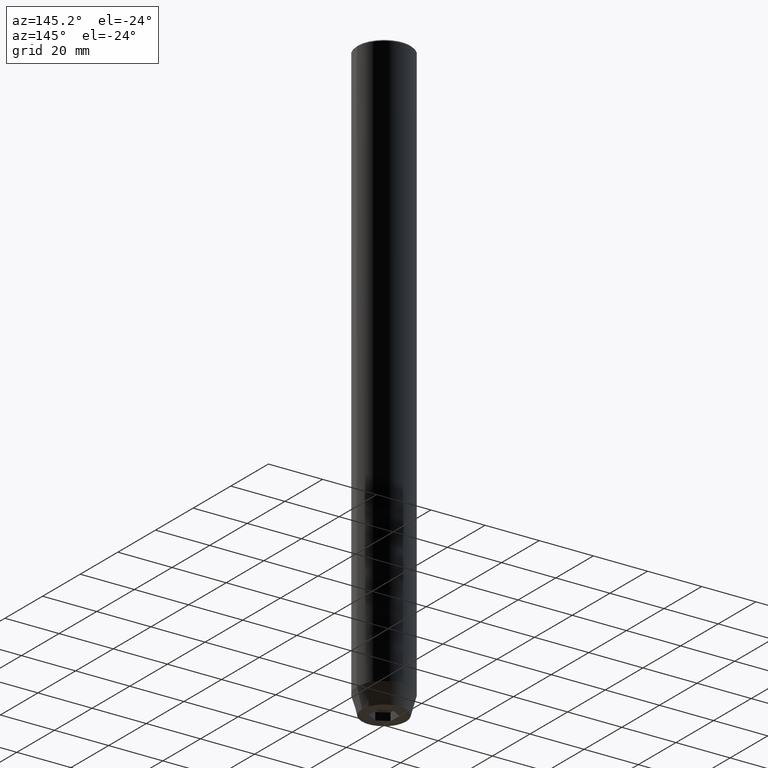
[diagram: clean part render]
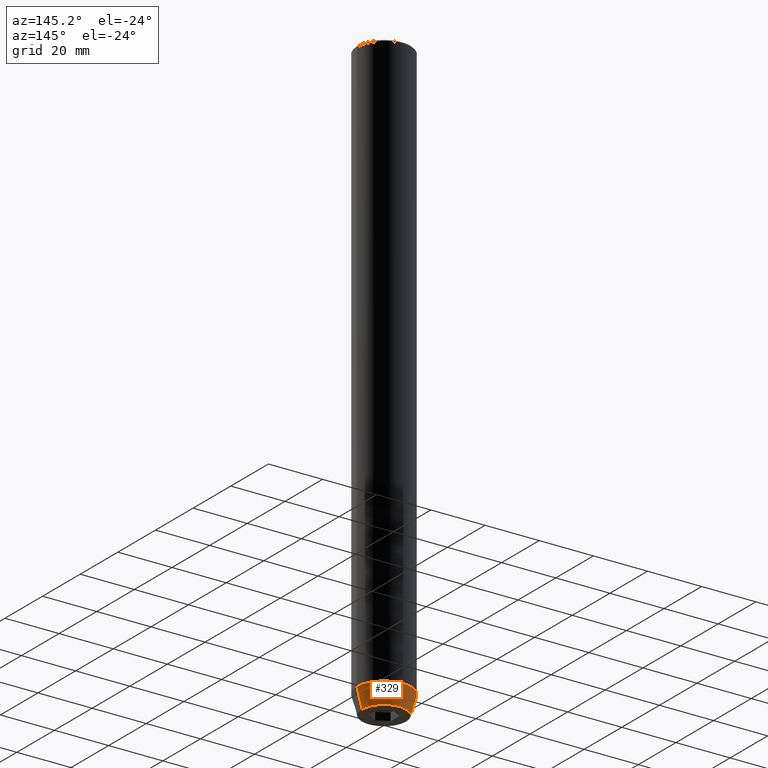
[diagram: same view with one face highlighted and labeled with its STEP entity id]
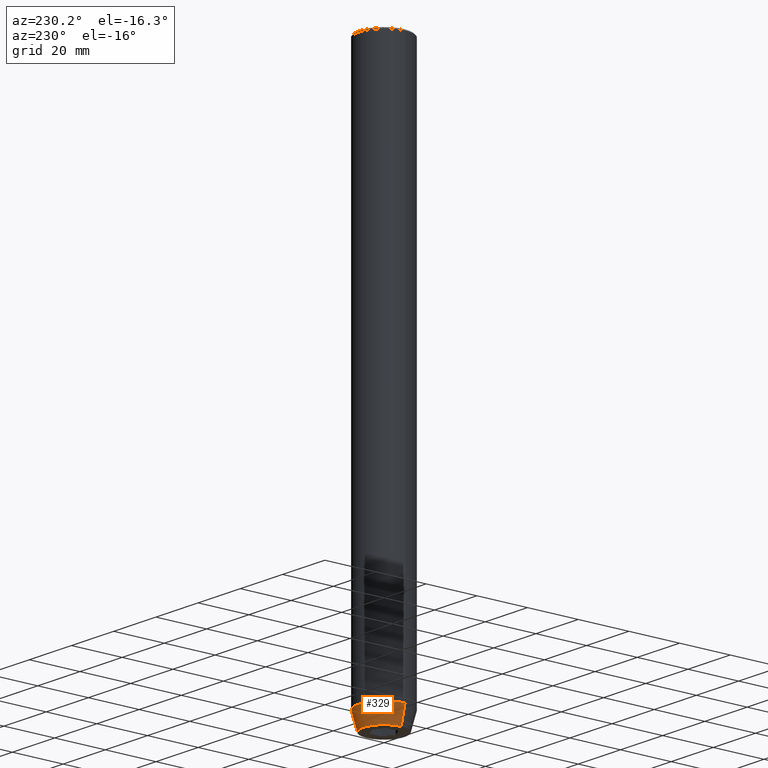
[diagram: same view with one face highlighted and labeled with its STEP entity id]
A machine part, auxiliary view. The second image highlights one B-rep face of the part: STEP entity #329.
A second angle (auxiliary view) of the same face is appended — the face is thin or edge-on in the first view.
In plain terms, the highlighted conical surface has half-angle 15 deg.
Its self-contained STEP definition (entity closure, byte-faithful):
#4 = VERTEX_POINT ( 'NONE', #357 ) ;
#11 = CONICAL_SURFACE ( 'NONE', #306, 10.00000000000000000, 0.2617993877991497409 ) ;
#20 = DIRECTION ( 'NONE',  ( 1.000000000000000000, 0.000000000000000000, 0.000000000000000000 ) ) ;
#21 = VERTEX_POINT ( 'NONE', #259 ) ;
#39 = AXIS2_PLACEMENT_3D ( 'NONE', #64, #228, #20 ) ;
#64 = CARTESIAN_POINT ( 'NONE',  ( 0.000000000000000000, 0.000000000000000000, -220.0000000000000000 ) ) ;
#105 = ORIENTED_EDGE ( 'NONE', *, *, #449, .T. ) ;
#144 = DIRECTION ( 'NONE',  ( 1.000000000000000000, 0.000000000000000000, 0.000000000000000000 ) ) ;
#206 = DIRECTION ( 'NONE',  ( 0.2588190451025210170, 0.000000000000000000, 0.9659258262890680902 ) ) ;
#213 = EDGE_CURVE ( 'NONE', #4, #375, #553, .T. ) ;
#216 = EDGE_CURVE ( 'NONE', #21, #319, #358, .T. ) ;
#228 = DIRECTION ( 'NONE',  ( -0.000000000000000000, -0.000000000000000000, 1.000000000000000000 ) ) ;
#259 = CARTESIAN_POINT ( 'NONE',  ( 8.124355652982130138, 0.000000000000000000, -220.0000000000000000 ) ) ;
#274 = AXIS2_PLACEMENT_3D ( 'NONE', #436, #554, #144 ) ;
#277 = EDGE_LOOP ( 'NONE', ( #421, #105, #585, #510 ) ) ;
#295 = EDGE_CURVE ( 'NONE', #21, #4, #438, .T. ) ;
#306 = AXIS2_PLACEMENT_3D ( 'NONE', #446, #499, #444 ) ;
#319 = VERTEX_POINT ( 'NONE', #491 ) ;
#329 = ADVANCED_FACE ( 'NONE', ( #494 ), #11, .T. ) ;
#344 = CARTESIAN_POINT ( 'NONE',  ( -10.00000000000000000, 1.224646799147353256E-15, -212.9999999999999716 ) ) ;
#357 = CARTESIAN_POINT ( 'NONE',  ( 10.00000000000000000, 0.000000000000000000, -212.9999999999999716 ) ) ;
#358 = CIRCLE ( 'NONE', #39, 8.124355652982130138 ) ;
#369 = VECTOR ( 'NONE', #206, 1000.000000000000114 ) ;
#375 = VERTEX_POINT ( 'NONE', #577 ) ;
#390 = CARTESIAN_POINT ( 'NONE',  ( 10.00000000000000000, 0.000000000000000000, -212.9999999999999716 ) ) ;
#421 = ORIENTED_EDGE ( 'NONE', *, *, #216, .T. ) ;
#436 = CARTESIAN_POINT ( 'NONE',  ( 0.000000000000000000, 0.000000000000000000, -212.9999999999999716 ) ) ;
#438 = LINE ( 'NONE', #390, #369 ) ;
#444 = DIRECTION ( 'NONE',  ( 1.000000000000000000, 0.000000000000000000, 0.000000000000000000 ) ) ;
#446 = CARTESIAN_POINT ( 'NONE',  ( 0.000000000000000000, 0.000000000000000000, -212.9999999999999716 ) ) ;
#449 = EDGE_CURVE ( 'NONE', #319, #375, #570, .T. ) ;
#485 = DIRECTION ( 'NONE',  ( -0.2588190451025210170, 3.169619151431768639E-17, 0.9659258262890680902 ) ) ;
#491 = CARTESIAN_POINT ( 'NONE',  ( -8.124355652982130138, 1.109796706851640162E-15, -220.0000000000000000 ) ) ;
#494 = FACE_OUTER_BOUND ( 'NONE', #277, .T. ) ;
#499 = DIRECTION ( 'NONE',  ( -0.000000000000000000, -0.000000000000000000, 1.000000000000000000 ) ) ;
#510 = ORIENTED_EDGE ( 'NONE', *, *, #295, .F. ) ;
#534 = VECTOR ( 'NONE', #485, 1000.000000000000114 ) ;
#553 = CIRCLE ( 'NONE', #274, 10.00000000000000000 ) ;
#554 = DIRECTION ( 'NONE',  ( -0.000000000000000000, -0.000000000000000000, 1.000000000000000000 ) ) ;
#570 = LINE ( 'NONE', #344, #534 ) ;
#577 = CARTESIAN_POINT ( 'NONE',  ( -10.00000000000000000, 1.224646799147353256E-15, -212.9999999999999716 ) ) ;
#585 = ORIENTED_EDGE ( 'NONE', *, *, #213, .F. ) ;